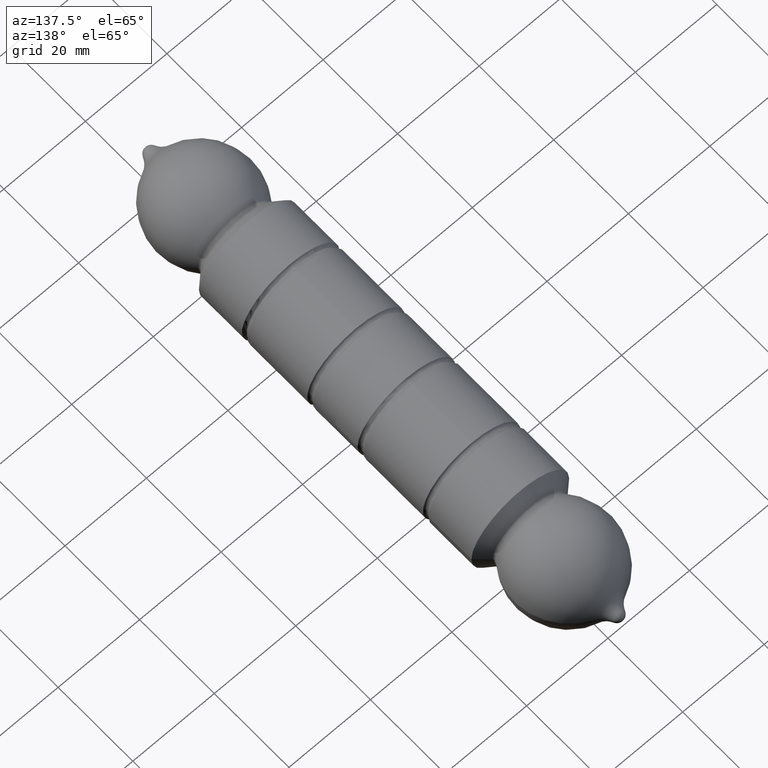
[diagram: clean part render]
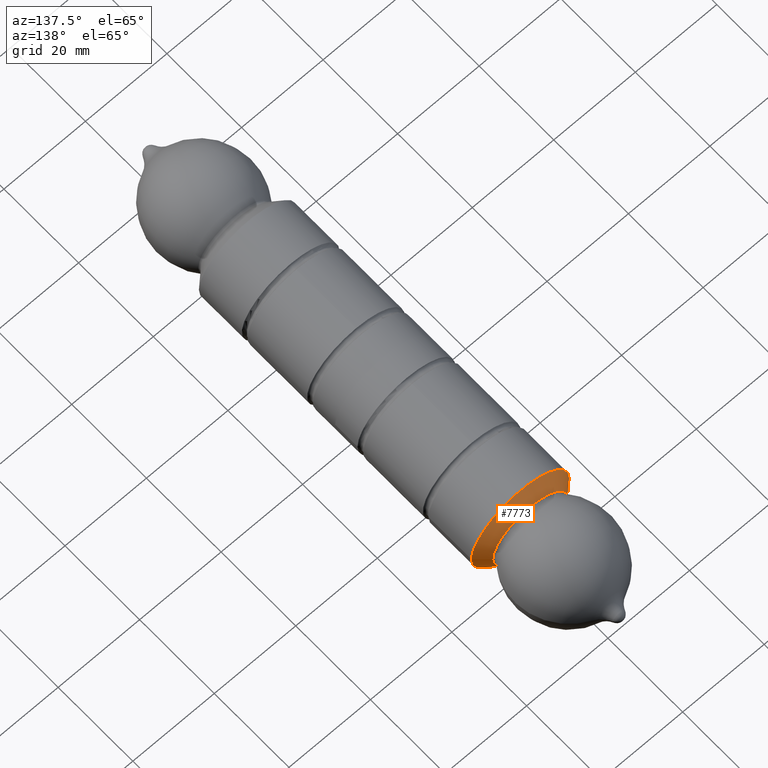
[diagram: same view with one face highlighted and labeled with its STEP entity id]
A machine part, auxiliary view. The second image highlights one B-rep face of the part: STEP entity #7773.
In plain terms, the highlighted conical surface has half-angle 47.162 deg.
Its self-contained STEP definition (entity closure, byte-faithful):
#424 = EDGE_LOOP ( 'NONE', ( #3452 ) ) ;
#884 = DIRECTION ( 'NONE',  ( -2.348637696994927648E-17, 1.000000000000000000, -4.314083075427431301E-32 ) ) ;
#1074 = VERTEX_POINT ( 'NONE', #11482 ) ;
#1874 = EDGE_CURVE ( 'NONE', #1074, #1074, #9031, .T. ) ;
#2187 = DIRECTION ( 'NONE',  ( -2.348637696994927648E-17, 1.000000000000000000, -4.314083075427431301E-32 ) ) ;
#2904 = EDGE_CURVE ( 'NONE', #3262, #3262, #11415, .T. ) ;
#3262 = VERTEX_POINT ( 'NONE', #8648 ) ;
#3452 = ORIENTED_EDGE ( 'NONE', *, *, #1874, .T. ) ;
#4000 = FACE_OUTER_BOUND ( 'NONE', #6553, .T. ) ;
#5060 = DIRECTION ( 'NONE',  ( -1.000000000000000000, 0.000000000000000000, 0.000000000000000000 ) ) ;
#5425 = AXIS2_PLACEMENT_3D ( 'NONE', #7813, #2187, #5060 ) ;
#6037 = DIRECTION ( 'NONE',  ( -1.000000000000000000, 0.000000000000000000, 0.000000000000000000 ) ) ;
#6553 = EDGE_LOOP ( 'NONE', ( #10542 ) ) ;
#7290 = CARTESIAN_POINT ( 'NONE',  ( 9.191008925220659410E-16, -39.13336202080267157, 1.688245747785194690E-30 ) ) ;
#7773 = ADVANCED_FACE ( 'NONE', ( #4000, #11230 ), #10636, .T. ) ;
#7813 = CARTESIAN_POINT ( 'NONE',  ( 8.572527594031471218E-16, -36.49999999999999289, 1.574640322531011565E-30 ) ) ;
#8312 = DIRECTION ( 'NONE',  ( -1.000000000000000000, 0.000000000000000000, 0.000000000000000000 ) ) ;
#8528 = AXIS2_PLACEMENT_3D ( 'NONE', #9866, #11671, #6037 ) ;
#8648 = CARTESIAN_POINT ( 'NONE',  ( -12.00000000000007994, -36.49999999999999289, 1.574640322531011565E-30 ) ) ;
#9031 = CIRCLE ( 'NONE', #10646, 9.160034424963264144 ) ;
#9866 = CARTESIAN_POINT ( 'NONE',  ( 9.191008925220659410E-16, -39.13336202080267157, 1.688245747785194690E-30 ) ) ;
#10542 = ORIENTED_EDGE ( 'NONE', *, *, #2904, .F. ) ;
#10636 = CONICAL_SURFACE ( 'NONE', #8528, 9.160034424963264144, 0.8231275898321853690 ) ;
#10646 = AXIS2_PLACEMENT_3D ( 'NONE', #7290, #884, #8312 ) ;
#11230 = FACE_BOUND ( 'NONE', #424, .T. ) ;
#11415 = CIRCLE ( 'NONE', #5425, 12.00000000000007994 ) ;
#11482 = CARTESIAN_POINT ( 'NONE',  ( -9.160034424963262367, -39.13336202080267157, 1.688245747785194690E-30 ) ) ;
#11671 = DIRECTION ( 'NONE',  ( -2.348637696994927648E-17, 1.000000000000000000, -4.314083075427431301E-32 ) ) ;